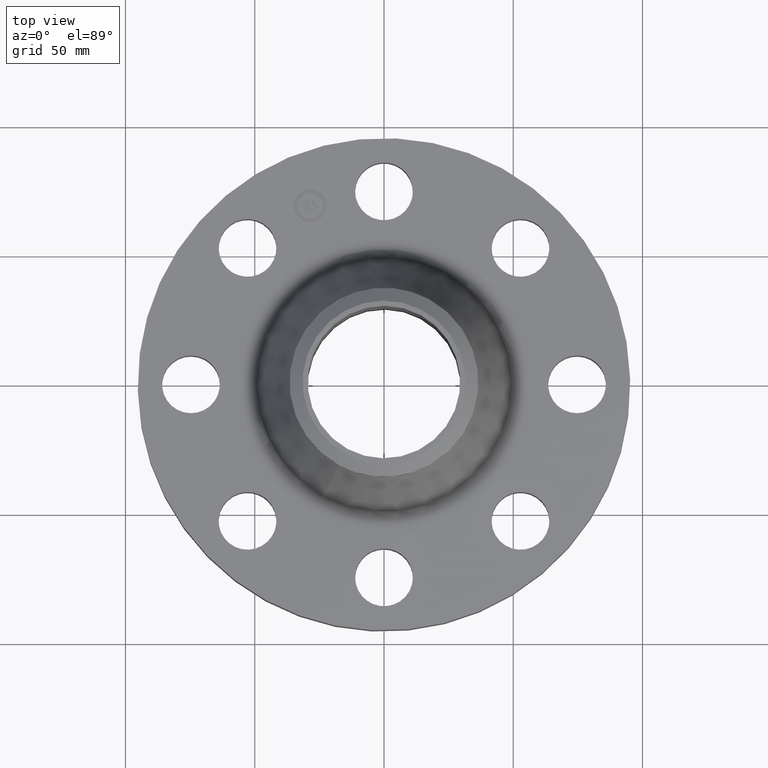
[diagram: clean part render]
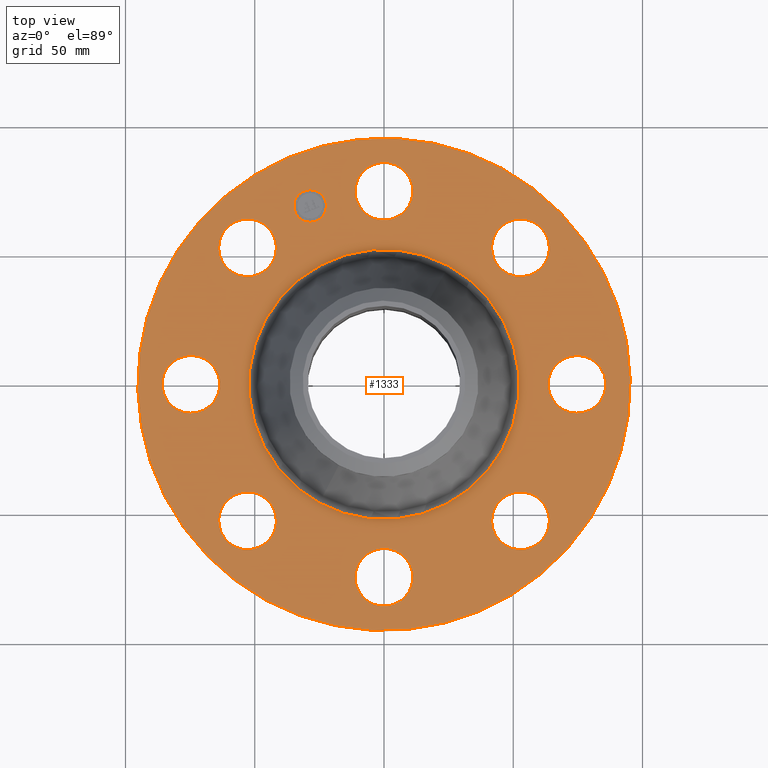
[diagram: same view with one face highlighted and labeled with its STEP entity id]
A machine part, top view. The second image highlights one B-rep face of the part: STEP entity #1333.
In plain terms, the highlighted planar face has unit normal (0, 0, -1).
Its self-contained STEP definition (entity closure, byte-faithful):
#65=AXIS2_PLACEMENT_3D('Circle Axis2P3D',#63,#64,$) ;
#89=AXIS2_PLACEMENT_3D('Circle Axis2P3D',#87,#88,$) ;
#123=AXIS2_PLACEMENT_3D('Circle Axis2P3D',#121,#122,$) ;
#147=AXIS2_PLACEMENT_3D('Circle Axis2P3D',#145,#146,$) ;
#164=AXIS2_PLACEMENT_3D('Circle Axis2P3D',#162,#163,$) ;
#199=AXIS2_PLACEMENT_3D('Circle Axis2P3D',#197,#198,$) ;
#751=AXIS2_PLACEMENT_3D('Circle Axis2P3D',#749,#750,$) ;
#763=AXIS2_PLACEMENT_3D('Circle Axis2P3D',#761,#762,$) ;
#795=AXIS2_PLACEMENT_3D('Circle Axis2P3D',#793,#794,$) ;
#807=AXIS2_PLACEMENT_3D('Circle Axis2P3D',#805,#806,$) ;
#839=AXIS2_PLACEMENT_3D('Circle Axis2P3D',#837,#838,$) ;
#851=AXIS2_PLACEMENT_3D('Circle Axis2P3D',#849,#850,$) ;
#883=AXIS2_PLACEMENT_3D('Circle Axis2P3D',#881,#882,$) ;
#895=AXIS2_PLACEMENT_3D('Circle Axis2P3D',#893,#894,$) ;
#927=AXIS2_PLACEMENT_3D('Circle Axis2P3D',#925,#926,$) ;
#939=AXIS2_PLACEMENT_3D('Circle Axis2P3D',#937,#938,$) ;
#971=AXIS2_PLACEMENT_3D('Circle Axis2P3D',#969,#970,$) ;
#983=AXIS2_PLACEMENT_3D('Circle Axis2P3D',#981,#982,$) ;
#1015=AXIS2_PLACEMENT_3D('Circle Axis2P3D',#1013,#1014,$) ;
#1027=AXIS2_PLACEMENT_3D('Circle Axis2P3D',#1025,#1026,$) ;
#1273=AXIS2_PLACEMENT_3D('Plane Axis2P3D',#1270,#1271,#1272) ;
#1317=AXIS2_PLACEMENT_3D('Circle Axis2P3D',#1315,#1316,$) ;
#1326=AXIS2_PLACEMENT_3D('Circle Axis2P3D',#1324,#1325,$) ;
#46=CARTESIAN_POINT('Vertex',(-0.386136327233,3.150947237,1.12)) ;
#60=CARTESIAN_POINT('Vertex',(0.386136327233,2.72905276303,1.12)) ;
#63=CARTESIAN_POINT('Axis2P3D Location',(0.,2.94000000001,1.12)) ;
#87=CARTESIAN_POINT('Axis2P3D Location',(0.,2.94000000001,1.12)) ;
#118=CARTESIAN_POINT('Vertex',(-1.79784576977,-3.2909346071,1.12)) ;
#121=CARTESIAN_POINT('Axis2P3D Location',(0.,0.,1.12)) ;
#125=CARTESIAN_POINT('Vertex',(1.79784576977,3.2909346071,1.12)) ;
#145=CARTESIAN_POINT('Axis2P3D Location',(0.,0.,1.12)) ;
#162=CARTESIAN_POINT('Axis2P3D Location',(0.,0.,1.12)) ;
#166=CARTESIAN_POINT('Vertex',(0.986101697499,1.80504704963,1.12)) ;
#168=CARTESIAN_POINT('Vertex',(-0.986101697499,-1.80504704963,1.12)) ;
#197=CARTESIAN_POINT('Axis2P3D Location',(0.,0.,1.12)) ;
#739=CARTESIAN_POINT('Vertex',(0.386136327233,-3.150947237,1.12)) ;
#746=CARTESIAN_POINT('Vertex',(-0.386136327233,-2.72905276303,1.12)) ;
#749=CARTESIAN_POINT('Axis2P3D Location',(3.60046158951E-016,-2.94000000001,1.12)) ;
#761=CARTESIAN_POINT('Axis2P3D Location',(3.60046158951E-016,-2.94000000001,1.12)) ;
#783=CARTESIAN_POINT('Vertex',(-2.50109577389,1.95501654299,1.12)) ;
#790=CARTESIAN_POINT('Vertex',(-1.6566920995,2.2027713304,1.12)) ;
#793=CARTESIAN_POINT('Axis2P3D Location',(-2.0788939367,2.0788939367,1.12)) ;
#805=CARTESIAN_POINT('Axis2P3D Location',(-2.0788939367,2.0788939367,1.12)) ;
#827=CARTESIAN_POINT('Vertex',(2.50109577389,-1.95501654299,1.12)) ;
#834=CARTESIAN_POINT('Vertex',(1.6566920995,-2.2027713304,1.12)) ;
#837=CARTESIAN_POINT('Axis2P3D Location',(2.0788939367,-2.0788939367,1.12)) ;
#849=CARTESIAN_POINT('Axis2P3D Location',(2.0788939367,-2.0788939367,1.12)) ;
#871=CARTESIAN_POINT('Vertex',(1.95501654299,2.50109577389,1.12)) ;
#878=CARTESIAN_POINT('Vertex',(2.2027713304,1.6566920995,1.12)) ;
#881=CARTESIAN_POINT('Axis2P3D Location',(2.0788939367,2.0788939367,1.12)) ;
#893=CARTESIAN_POINT('Axis2P3D Location',(2.0788939367,2.0788939367,1.12)) ;
#915=CARTESIAN_POINT('Vertex',(-3.150947237,-0.386136327233,1.12)) ;
#922=CARTESIAN_POINT('Vertex',(-2.72905276303,0.386136327233,1.12)) ;
#925=CARTESIAN_POINT('Axis2P3D Location',(-2.94000000001,-5.40069238426E-016,1.12)) ;
#937=CARTESIAN_POINT('Axis2P3D Location',(-2.94000000001,-5.40069238426E-016,1.12)) ;
#959=CARTESIAN_POINT('Vertex',(-1.95501654299,-2.50109577389,1.12)) ;
#966=CARTESIAN_POINT('Vertex',(-2.2027713304,-1.6566920995,1.12)) ;
#969=CARTESIAN_POINT('Axis2P3D Location',(-2.0788939367,-2.0788939367,1.12)) ;
#981=CARTESIAN_POINT('Axis2P3D Location',(-2.0788939367,-2.0788939367,1.12)) ;
#1003=CARTESIAN_POINT('Vertex',(3.150947237,0.386136327233,1.12)) ;
#1010=CARTESIAN_POINT('Vertex',(2.72905276303,-0.386136327233,1.12)) ;
#1013=CARTESIAN_POINT('Axis2P3D Location',(2.94000000001,-3.79459389627E-016,1.12)) ;
#1025=CARTESIAN_POINT('Axis2P3D Location',(2.94000000001,-3.79459389627E-016,1.12)) ;
#1270=CARTESIAN_POINT('Axis2P3D Location',(0.,3.75000000002,1.12)) ;
#1315=CARTESIAN_POINT('Axis2P3D Location',(-1.12508929116,2.71620582559,1.12)) ;
#1319=CARTESIAN_POINT('Vertex',(-1.35374947546,2.62149167608,1.12)) ;
#1321=CARTESIAN_POINT('Vertex',(-0.89642910686,2.8109199751,1.12)) ;
#1324=CARTESIAN_POINT('Axis2P3D Location',(-1.12508929116,2.71620582559,1.12)) ;
#64=DIRECTION('Axis2P3D Direction',(0.,-0.,-0.0393700787402)) ;
#88=DIRECTION('Axis2P3D Direction',(0.,-0.,-0.0393700787402)) ;
#122=DIRECTION('Axis2P3D Direction',(0.,0.,-0.0393700787402)) ;
#146=DIRECTION('Axis2P3D Direction',(0.,0.,-0.0393700787402)) ;
#163=DIRECTION('Axis2P3D Direction',(0.,0.,-0.0393700787402)) ;
#198=DIRECTION('Axis2P3D Direction',(0.,0.,-0.0393700787402)) ;
#750=DIRECTION('Axis2P3D Direction',(-0.,0.,-0.0393700787402)) ;
#762=DIRECTION('Axis2P3D Direction',(-0.,0.,-0.0393700787402)) ;
#794=DIRECTION('Axis2P3D Direction',(0.,0.,-0.0393700787402)) ;
#806=DIRECTION('Axis2P3D Direction',(0.,0.,-0.0393700787402)) ;
#838=DIRECTION('Axis2P3D Direction',(-0.,0.,-0.0393700787402)) ;
#850=DIRECTION('Axis2P3D Direction',(-0.,0.,-0.0393700787402)) ;
#882=DIRECTION('Axis2P3D Direction',(0.,-0.,-0.0393700787402)) ;
#894=DIRECTION('Axis2P3D Direction',(0.,-0.,-0.0393700787402)) ;
#926=DIRECTION('Axis2P3D Direction',(0.,0.,-0.0393700787402)) ;
#938=DIRECTION('Axis2P3D Direction',(0.,0.,-0.0393700787402)) ;
#970=DIRECTION('Axis2P3D Direction',(0.,0.,-0.0393700787402)) ;
#982=DIRECTION('Axis2P3D Direction',(0.,0.,-0.0393700787402)) ;
#1014=DIRECTION('Axis2P3D Direction',(0.,-0.,-0.0393700787402)) ;
#1026=DIRECTION('Axis2P3D Direction',(0.,-0.,-0.0393700787402)) ;
#1271=DIRECTION('Axis2P3D Direction',(0.,0.,-0.0393700787402)) ;
#1272=DIRECTION('Axis2P3D XDirection',(0.0393700787402,0.,0.)) ;
#1316=DIRECTION('Axis2P3D Direction',(0.,0.,-0.0393700787402)) ;
#1325=DIRECTION('Axis2P3D Direction',(0.,0.,-0.0393700787402)) ;
#1276=ORIENTED_EDGE('',*,*,#149,.F.) ;
#1277=ORIENTED_EDGE('',*,*,#127,.F.) ;
#1280=ORIENTED_EDGE('',*,*,#67,.T.) ;
#1281=ORIENTED_EDGE('',*,*,#91,.T.) ;
#1284=ORIENTED_EDGE('',*,*,#201,.T.) ;
#1285=ORIENTED_EDGE('',*,*,#170,.T.) ;
#1288=ORIENTED_EDGE('',*,*,#897,.T.) ;
#1289=ORIENTED_EDGE('',*,*,#885,.T.) ;
#1292=ORIENTED_EDGE('',*,*,#1029,.T.) ;
#1293=ORIENTED_EDGE('',*,*,#1017,.T.) ;
#1296=ORIENTED_EDGE('',*,*,#853,.T.) ;
#1297=ORIENTED_EDGE('',*,*,#841,.T.) ;
#1300=ORIENTED_EDGE('',*,*,#765,.T.) ;
#1301=ORIENTED_EDGE('',*,*,#753,.T.) ;
#1304=ORIENTED_EDGE('',*,*,#985,.T.) ;
#1305=ORIENTED_EDGE('',*,*,#973,.T.) ;
#1308=ORIENTED_EDGE('',*,*,#941,.T.) ;
#1309=ORIENTED_EDGE('',*,*,#929,.T.) ;
#1312=ORIENTED_EDGE('',*,*,#809,.T.) ;
#1313=ORIENTED_EDGE('',*,*,#797,.T.) ;
#1330=ORIENTED_EDGE('',*,*,#1323,.T.) ;
#1331=ORIENTED_EDGE('',*,*,#1328,.T.) ;
#1282=FACE_BOUND('',#1279,.T.) ;
#1286=FACE_BOUND('',#1283,.T.) ;
#1290=FACE_BOUND('',#1287,.T.) ;
#1294=FACE_BOUND('',#1291,.T.) ;
#1298=FACE_BOUND('',#1295,.T.) ;
#1302=FACE_BOUND('',#1299,.T.) ;
#1306=FACE_BOUND('',#1303,.T.) ;
#1310=FACE_BOUND('',#1307,.T.) ;
#1314=FACE_BOUND('',#1311,.T.) ;
#1332=FACE_BOUND('',#1329,.T.) ;
#1333=ADVANCED_FACE('PartBody',(#1278,#1282,#1286,#1290,#1294,#1298,#1302,#1306,#1310,#1314,#1332),#1274,.F.) ;
#66=CIRCLE('generated circle',#65,0.440000000002) ;
#90=CIRCLE('generated circle',#89,0.440000000002) ;
#124=CIRCLE('generated circle',#123,3.75000000002) ;
#148=CIRCLE('generated circle',#147,3.75000000002) ;
#165=CIRCLE('generated circle',#164,2.05684015159) ;
#200=CIRCLE('generated circle',#199,2.05684015159) ;
#752=CIRCLE('generated circle',#751,0.440000000002) ;
#764=CIRCLE('generated circle',#763,0.440000000002) ;
#796=CIRCLE('generated circle',#795,0.440000000002) ;
#808=CIRCLE('generated circle',#807,0.440000000002) ;
#840=CIRCLE('generated circle',#839,0.440000000002) ;
#852=CIRCLE('generated circle',#851,0.440000000002) ;
#884=CIRCLE('generated circle',#883,0.440000000002) ;
#896=CIRCLE('generated circle',#895,0.440000000002) ;
#928=CIRCLE('generated circle',#927,0.440000000002) ;
#940=CIRCLE('generated circle',#939,0.440000000002) ;
#972=CIRCLE('generated circle',#971,0.440000000002) ;
#984=CIRCLE('generated circle',#983,0.440000000002) ;
#1016=CIRCLE('generated circle',#1015,0.440000000002) ;
#1028=CIRCLE('generated circle',#1027,0.440000000002) ;
#1318=CIRCLE('generated circle',#1317,0.247500000001) ;
#1327=CIRCLE('generated circle',#1326,0.247500000001) ;
#67=EDGE_CURVE('',#47,#61,#66,.T.) ;
#91=EDGE_CURVE('',#61,#47,#90,.T.) ;
#127=EDGE_CURVE('',#119,#126,#124,.T.) ;
#149=EDGE_CURVE('',#126,#119,#148,.T.) ;
#170=EDGE_CURVE('',#167,#169,#165,.T.) ;
#201=EDGE_CURVE('',#169,#167,#200,.T.) ;
#753=EDGE_CURVE('',#740,#747,#752,.T.) ;
#765=EDGE_CURVE('',#747,#740,#764,.T.) ;
#797=EDGE_CURVE('',#784,#791,#796,.T.) ;
#809=EDGE_CURVE('',#791,#784,#808,.T.) ;
#841=EDGE_CURVE('',#828,#835,#840,.T.) ;
#853=EDGE_CURVE('',#835,#828,#852,.T.) ;
#885=EDGE_CURVE('',#872,#879,#884,.T.) ;
#897=EDGE_CURVE('',#879,#872,#896,.T.) ;
#929=EDGE_CURVE('',#916,#923,#928,.T.) ;
#941=EDGE_CURVE('',#923,#916,#940,.T.) ;
#973=EDGE_CURVE('',#960,#967,#972,.T.) ;
#985=EDGE_CURVE('',#967,#960,#984,.T.) ;
#1017=EDGE_CURVE('',#1004,#1011,#1016,.T.) ;
#1029=EDGE_CURVE('',#1011,#1004,#1028,.T.) ;
#1323=EDGE_CURVE('',#1320,#1322,#1318,.T.) ;
#1328=EDGE_CURVE('',#1322,#1320,#1327,.T.) ;
#1275=EDGE_LOOP('',(#1276,#1277)) ;
#1279=EDGE_LOOP('',(#1280,#1281)) ;
#1283=EDGE_LOOP('',(#1284,#1285)) ;
#1287=EDGE_LOOP('',(#1288,#1289)) ;
#1291=EDGE_LOOP('',(#1292,#1293)) ;
#1295=EDGE_LOOP('',(#1296,#1297)) ;
#1299=EDGE_LOOP('',(#1300,#1301)) ;
#1303=EDGE_LOOP('',(#1304,#1305)) ;
#1307=EDGE_LOOP('',(#1308,#1309)) ;
#1311=EDGE_LOOP('',(#1312,#1313)) ;
#1329=EDGE_LOOP('',(#1330,#1331)) ;
#1278=FACE_OUTER_BOUND('',#1275,.T.) ;
#1274=PLANE('',#1273) ;
#47=VERTEX_POINT('',#46) ;
#61=VERTEX_POINT('',#60) ;
#119=VERTEX_POINT('',#118) ;
#126=VERTEX_POINT('',#125) ;
#167=VERTEX_POINT('',#166) ;
#169=VERTEX_POINT('',#168) ;
#740=VERTEX_POINT('',#739) ;
#747=VERTEX_POINT('',#746) ;
#784=VERTEX_POINT('',#783) ;
#791=VERTEX_POINT('',#790) ;
#828=VERTEX_POINT('',#827) ;
#835=VERTEX_POINT('',#834) ;
#872=VERTEX_POINT('',#871) ;
#879=VERTEX_POINT('',#878) ;
#916=VERTEX_POINT('',#915) ;
#923=VERTEX_POINT('',#922) ;
#960=VERTEX_POINT('',#959) ;
#967=VERTEX_POINT('',#966) ;
#1004=VERTEX_POINT('',#1003) ;
#1011=VERTEX_POINT('',#1010) ;
#1320=VERTEX_POINT('',#1319) ;
#1322=VERTEX_POINT('',#1321) ;